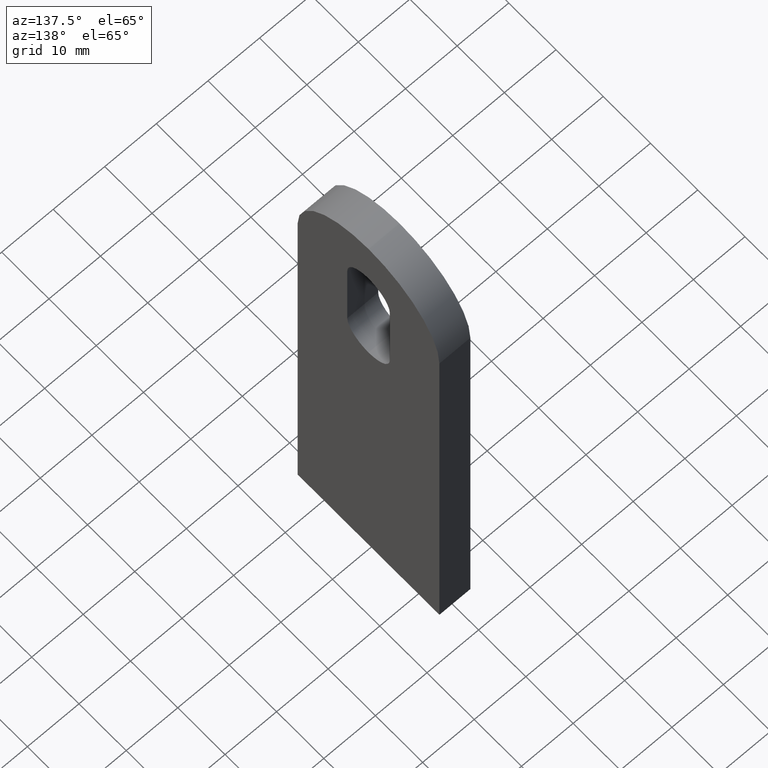
[diagram: clean part render]
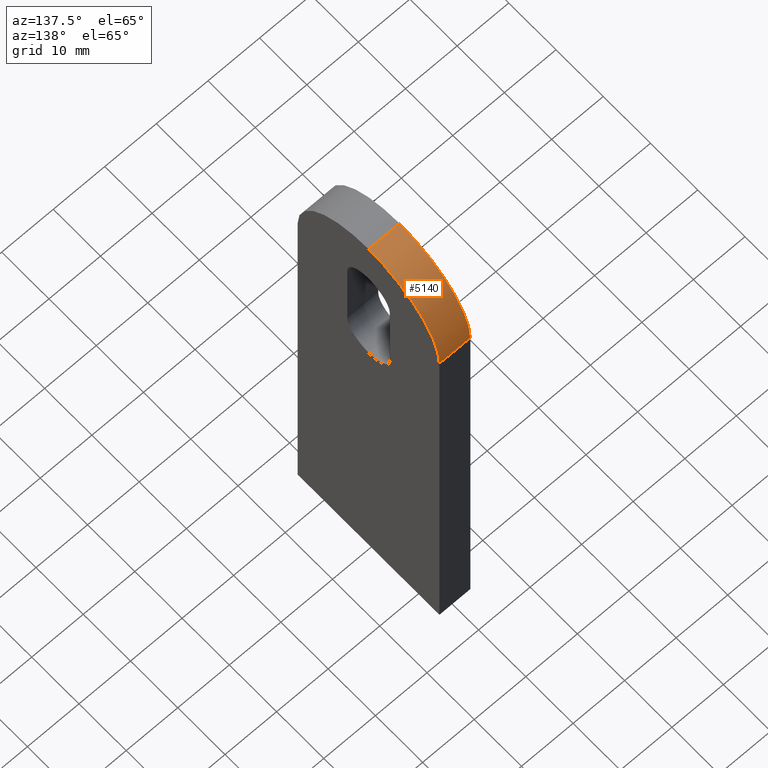
[diagram: same view with one face highlighted and labeled with its STEP entity id]
A machine part, auxiliary view. The second image highlights one B-rep face of the part: STEP entity #5140.
In plain terms, the highlighted cylindrical surface (partial cylindrical patch) has radius 15 mm, axis along (-1, -0, -0).
Its self-contained STEP definition (entity closure, byte-faithful):
#32 = AXIS2_PLACEMENT_3D ( 'NONE', #9121, #9929, #6738 ) ;
#513 = EDGE_LOOP ( 'NONE', ( #6294, #10340, #2262, #5877 ) ) ;
#578 = CIRCLE ( 'NONE', #3880, 15.00000000000000000 ) ;
#600 = DIRECTION ( 'NONE',  ( -1.000000000000000000, -0.0000000000000000000, 0.0000000000000000000 ) ) ;
#778 = DIRECTION ( 'NONE',  ( -1.000000000000000000, -0.0000000000000000000, -0.0000000000000000000 ) ) ;
#831 = VECTOR ( 'NONE', #9018, 1000.000000000000000 ) ;
#1056 = CARTESIAN_POINT ( 'NONE',  ( 3.000000000000000000, 0.0000000000000000000, 99.99999999999998600 ) ) ;
#1214 = DIRECTION ( 'NONE',  ( 0.0000000000000000000, 0.0000000000000000000, 1.000000000000000000 ) ) ;
#1507 = LINE ( 'NONE', #8760, #8313 ) ;
#1553 = VERTEX_POINT ( 'NONE', #6119 ) ;
#1880 = CYLINDRICAL_SURFACE ( 'NONE', #5652, 15.00000000000000000 ) ;
#2134 = VERTEX_POINT ( 'NONE', #2156 ) ;
#2156 = CARTESIAN_POINT ( 'NONE',  ( -3.000000000000000000, 15.00000000000000200, 84.99999999999998600 ) ) ;
#2258 = EDGE_CURVE ( 'NONE', #1553, #2134, #1507, .T. ) ;
#2262 = ORIENTED_EDGE ( 'NONE', *, *, #2258, .T. ) ;
#2311 = CIRCLE ( 'NONE', #32, 15.00000000000000000 ) ;
#2459 = CARTESIAN_POINT ( 'NONE',  ( -3.000000000000000000, 0.0000000000000000000, 99.99999999999998600 ) ) ;
#3526 = FACE_OUTER_BOUND ( 'NONE', #513, .T. ) ;
#3880 = AXIS2_PLACEMENT_3D ( 'NONE', #6259, #600, #3935 ) ;
#3935 = DIRECTION ( 'NONE',  ( 0.0000000000000000000, 0.0000000000000000000, 1.000000000000000000 ) ) ;
#4033 = EDGE_CURVE ( 'NONE', #9513, #2134, #578, .T. ) ;
#4528 = VERTEX_POINT ( 'NONE', #7724 ) ;
#5140 = ADVANCED_FACE ( 'NONE', ( #3526 ), #1880, .T. ) ;
#5652 = AXIS2_PLACEMENT_3D ( 'NONE', #8422, #6047, #1214 ) ;
#5877 = ORIENTED_EDGE ( 'NONE', *, *, #4033, .F. ) ;
#6047 = DIRECTION ( 'NONE',  ( -1.000000000000000000, -0.0000000000000000000, -0.0000000000000000000 ) ) ;
#6119 = CARTESIAN_POINT ( 'NONE',  ( 3.000000000000000000, 15.00000000000000200, 84.99999999999998600 ) ) ;
#6259 = CARTESIAN_POINT ( 'NONE',  ( -3.000000000000000000, 0.0000000000000000000, 84.99999999999998600 ) ) ;
#6294 = ORIENTED_EDGE ( 'NONE', *, *, #7476, .F. ) ;
#6738 = DIRECTION ( 'NONE',  ( 0.0000000000000000000, 0.0000000000000000000, 1.000000000000000000 ) ) ;
#7476 = EDGE_CURVE ( 'NONE', #4528, #9513, #7632, .T. ) ;
#7632 = LINE ( 'NONE', #1056, #831 ) ;
#7724 = CARTESIAN_POINT ( 'NONE',  ( 3.000000000000000000, 0.0000000000000000000, 99.99999999999998600 ) ) ;
#8313 = VECTOR ( 'NONE', #778, 1000.000000000000000 ) ;
#8422 = CARTESIAN_POINT ( 'NONE',  ( 3.000000000000000000, 0.0000000000000000000, 84.99999999999998600 ) ) ;
#8760 = CARTESIAN_POINT ( 'NONE',  ( 3.000000000000000000, 15.00000000000000200, 84.99999999999998600 ) ) ;
#9018 = DIRECTION ( 'NONE',  ( -1.000000000000000000, -0.0000000000000000000, -0.0000000000000000000 ) ) ;
#9121 = CARTESIAN_POINT ( 'NONE',  ( 3.000000000000000000, 0.0000000000000000000, 84.99999999999998600 ) ) ;
#9246 = EDGE_CURVE ( 'NONE', #4528, #1553, #2311, .T. ) ;
#9513 = VERTEX_POINT ( 'NONE', #2459 ) ;
#9929 = DIRECTION ( 'NONE',  ( -1.000000000000000000, -0.0000000000000000000, 0.0000000000000000000 ) ) ;
#10340 = ORIENTED_EDGE ( 'NONE', *, *, #9246, .T. ) ;